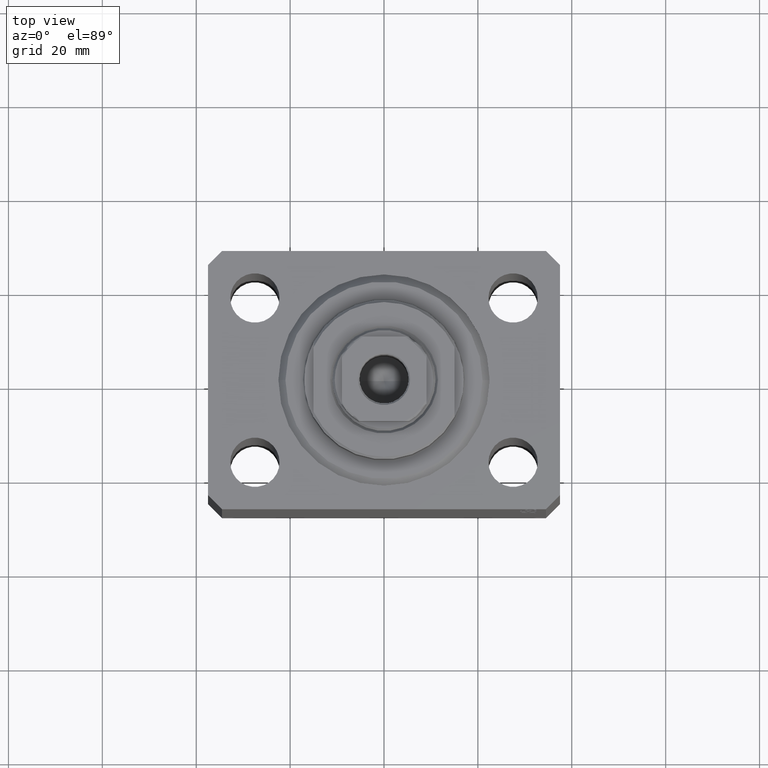
[diagram: clean part render]
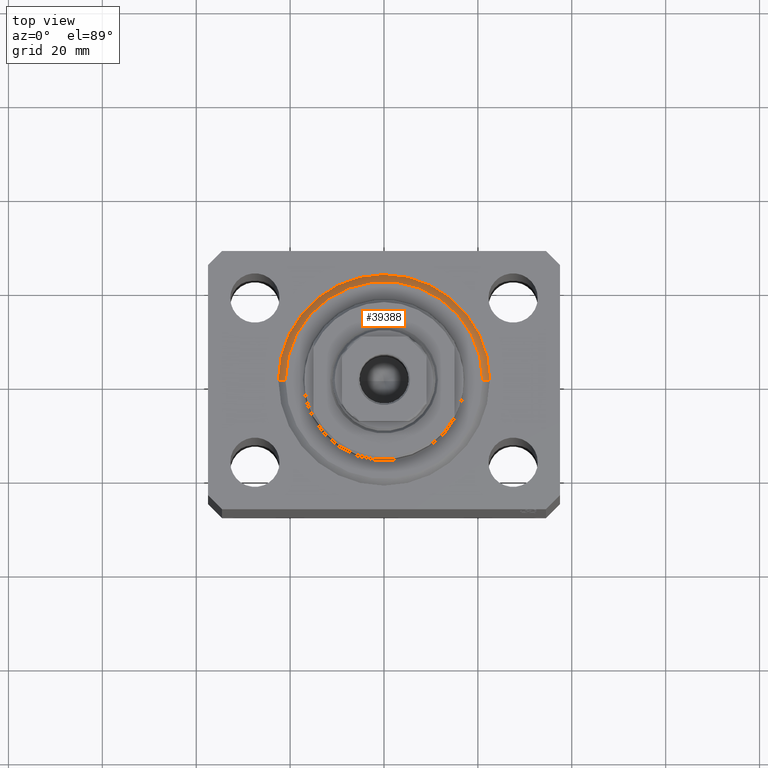
[diagram: same view with one face highlighted and labeled with its STEP entity id]
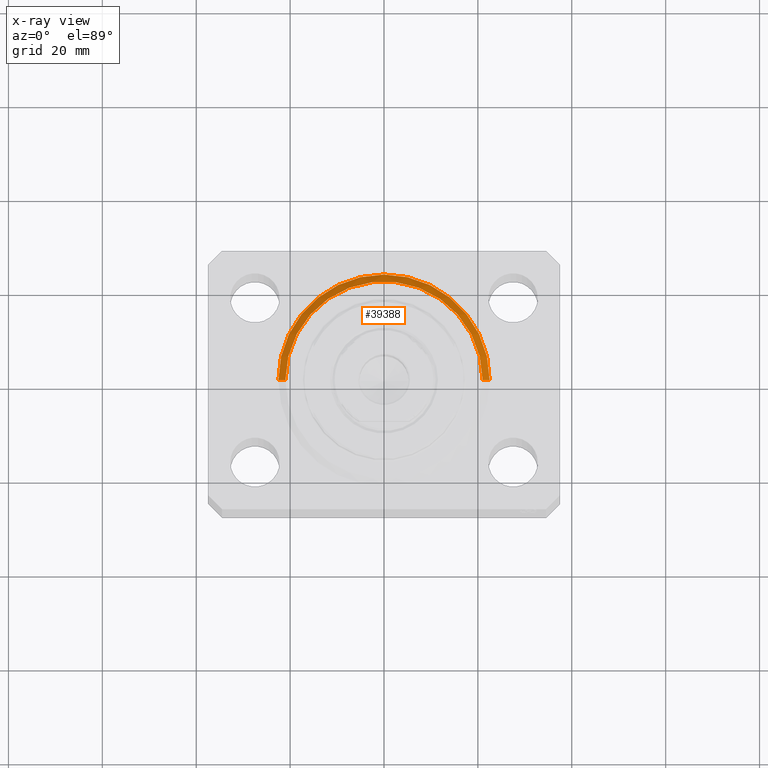
[diagram: x-ray of the same camera — body ghosted, the highlighted face saturated]
A machine part, top view. The second image highlights one B-rep face of the part: STEP entity #39388.
The next image is the same camera in x-ray: the body ghosted, the highlighted face saturated — about 0% of this face is hidden behind the body in this view.
In plain terms, the highlighted conical surface has half-angle 45 deg.
Its self-contained STEP definition (entity closure, byte-faithful):
#303 = AXIS2_PLACEMENT_3D ( 'NONE', #9183, #24489, #44568 ) ;
#2082 = DIRECTION ( 'NONE',  ( 0.7071067811865500152, 0.000000000000000000, 0.7071067811865451302 ) ) ;
#4310 = CIRCLE ( 'NONE', #23085, 20.99999999999998934 ) ;
#5485 = VERTEX_POINT ( 'NONE', #26934 ) ;
#7048 = VERTEX_POINT ( 'NONE', #27995 ) ;
#9183 = CARTESIAN_POINT ( 'NONE',  ( 0.000000000000000000, 0.000000000000000000, 1.500000000000001332 ) ) ;
#11526 = VECTOR ( 'NONE', #30102, 1000.000000000000114 ) ;
#12376 = EDGE_CURVE ( 'NONE', #44404, #7048, #19234, .T. ) ;
#12388 = CIRCLE ( 'NONE', #23230, 22.50000000000000355 ) ;
#12562 = FACE_OUTER_BOUND ( 'NONE', #31702, .T. ) ;
#13250 = CONICAL_SURFACE ( 'NONE', #303, 22.50000000000000355, 0.7853981633974517207 ) ;
#13383 = LINE ( 'NONE', #23118, #11526 ) ;
#14765 = ORIENTED_EDGE ( 'NONE', *, *, #21817, .F. ) ;
#16192 = CARTESIAN_POINT ( 'NONE',  ( 0.000000000000000000, 0.000000000000000000, 1.500000000000001332 ) ) ;
#16844 = DIRECTION ( 'NONE',  ( -0.000000000000000000, -0.000000000000000000, 1.000000000000000000 ) ) ;
#19234 = LINE ( 'NONE', #33652, #32177 ) ;
#21469 = EDGE_CURVE ( 'NONE', #5485, #22430, #13383, .T. ) ;
#21817 = EDGE_CURVE ( 'NONE', #5485, #44404, #4310, .T. ) ;
#21818 = CARTESIAN_POINT ( 'NONE',  ( 20.99999999999998934, 0.000000000000000000, 0.000000000000000000 ) ) ;
#22430 = VERTEX_POINT ( 'NONE', #28156 ) ;
#23085 = AXIS2_PLACEMENT_3D ( 'NONE', #29824, #37231, #33647 ) ;
#23118 = CARTESIAN_POINT ( 'NONE',  ( -22.50000000000000355, 2.755455298081545172E-15, 1.500000000000001332 ) ) ;
#23230 = AXIS2_PLACEMENT_3D ( 'NONE', #16192, #16844, #44151 ) ;
#24489 = DIRECTION ( 'NONE',  ( -0.000000000000000000, -0.000000000000000000, 1.000000000000000000 ) ) ;
#25158 = ORIENTED_EDGE ( 'NONE', *, *, #12376, .F. ) ;
#26934 = CARTESIAN_POINT ( 'NONE',  ( -20.99999999999998934, 2.663606788145492628E-15, 0.000000000000000000 ) ) ;
#27995 = CARTESIAN_POINT ( 'NONE',  ( 22.50000000000000355, 2.755455298081545172E-15, 1.500000000000001332 ) ) ;
#28156 = CARTESIAN_POINT ( 'NONE',  ( -22.50000000000000355, 0.000000000000000000, 1.500000000000001332 ) ) ;
#29824 = CARTESIAN_POINT ( 'NONE',  ( 0.000000000000000000, 0.000000000000000000, 0.000000000000000000 ) ) ;
#30102 = DIRECTION ( 'NONE',  ( -0.7071067811865500152, 8.659560562354963673E-17, 0.7071067811865451302 ) ) ;
#31702 = EDGE_LOOP ( 'NONE', ( #14765, #34667, #39639, #25158 ) ) ;
#32177 = VECTOR ( 'NONE', #2082, 1000.000000000000114 ) ;
#33647 = DIRECTION ( 'NONE',  ( 1.000000000000000000, 0.000000000000000000, 0.000000000000000000 ) ) ;
#33652 = CARTESIAN_POINT ( 'NONE',  ( 22.50000000000000355, 0.000000000000000000, 1.500000000000001332 ) ) ;
#34667 = ORIENTED_EDGE ( 'NONE', *, *, #21469, .T. ) ;
#35998 = EDGE_CURVE ( 'NONE', #7048, #22430, #12388, .T. ) ;
#37231 = DIRECTION ( 'NONE',  ( -0.000000000000000000, -0.000000000000000000, -1.000000000000000000 ) ) ;
#39388 = ADVANCED_FACE ( 'NONE', ( #12562 ), #13250, .T. ) ;
#39639 = ORIENTED_EDGE ( 'NONE', *, *, #35998, .F. ) ;
#44151 = DIRECTION ( 'NONE',  ( 1.000000000000000000, 0.000000000000000000, 0.000000000000000000 ) ) ;
#44404 = VERTEX_POINT ( 'NONE', #21818 ) ;
#44568 = DIRECTION ( 'NONE',  ( 1.000000000000000000, 0.000000000000000000, 0.000000000000000000 ) ) ;